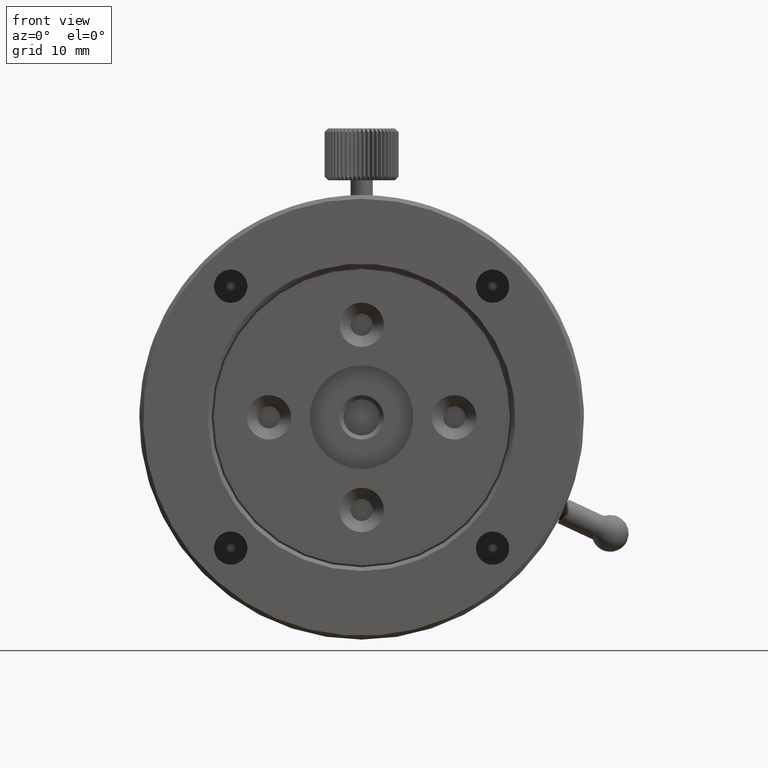
[diagram: clean part render]
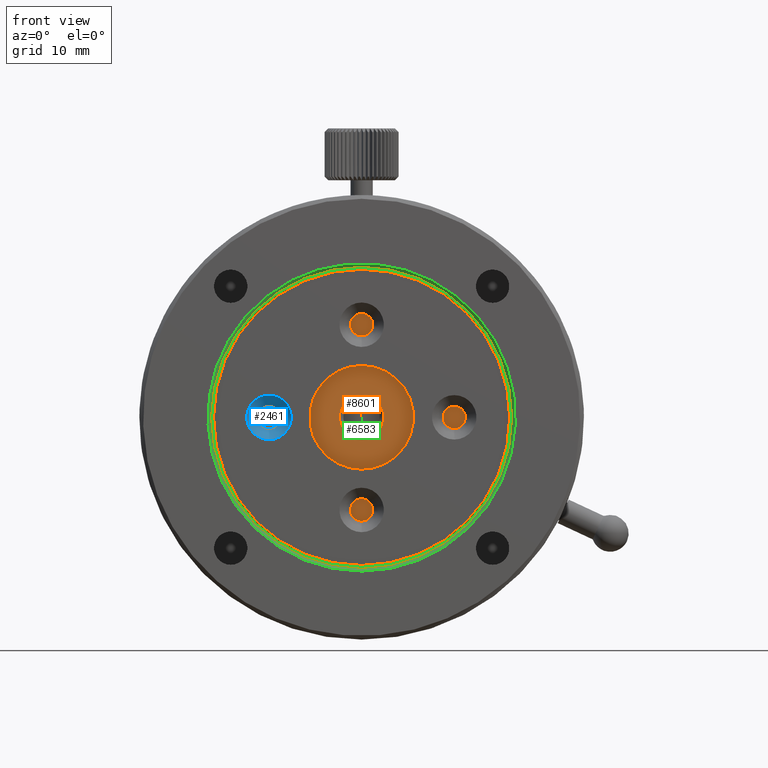
[diagram: same view with three faces highlighted in distinct colors, each labeled with its STEP entity id]
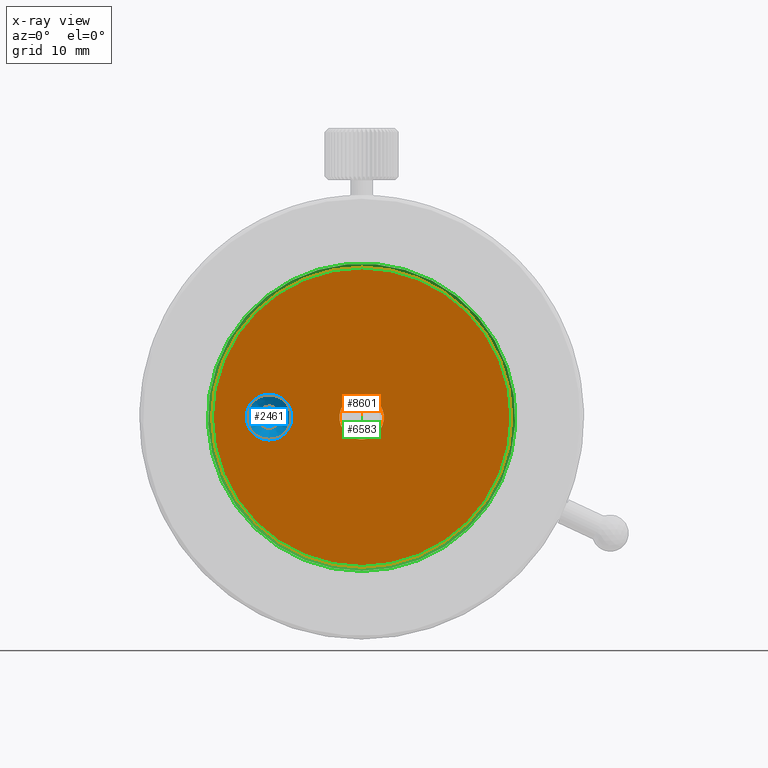
[diagram: x-ray of the same camera — body ghosted, the three highlighted faces saturated]
A machine part, front view with three faces highlighted in distinct colors.
The next image is the same camera in x-ray (body ghosted, the three faces saturated) — at least one of them is partly hidden behind the body in this view.
Their STEP definitions:

[orange] entity #8601 — the highlighted planar face has unit normal (0, -1, 0).
#301 = FACE_BOUND ( 'NONE', #1353, .T. ) ;
#866 = DIRECTION ( 'NONE',  ( 0.000000000000000000, -1.000000000000000000, 0.000000000000000000 ) ) ;
#1353 = EDGE_LOOP ( 'NONE', ( #4893 ) ) ;
#1518 = EDGE_CURVE ( 'NONE', #3046, #3046, #4305, .T. ) ;
#1639 = DIRECTION ( 'NONE',  ( 0.000000000000000000, 0.000000000000000000, -1.000000000000000000 ) ) ;
#1784 = CARTESIAN_POINT ( 'NONE',  ( 2.121320343559641053, 3.000000000000000000, -2.121320343559644162 ) ) ;
#2465 = AXIS2_PLACEMENT_3D ( 'NONE', #4532, #3905, #1639 ) ;
#2533 = EDGE_LOOP ( 'NONE', ( #9040 ) ) ;
#3046 = VERTEX_POINT ( 'NONE', #3816 ) ;
#3149 = EDGE_CURVE ( 'NONE', #3330, #3330, #8169, .T. ) ;
#3330 = VERTEX_POINT ( 'NONE', #9198 ) ;
#3790 = DIRECTION ( 'NONE',  ( 0.000000000000000000, 0.000000000000000000, -1.000000000000000000 ) ) ;
#3816 = CARTESIAN_POINT ( 'NONE',  ( 0.000000000000000000, 2.999999999929059413, -3.000000000000008438 ) ) ;
#3905 = DIRECTION ( 'NONE',  ( -0.000000000000000000, 1.000000000000000000, -0.000000000000000000 ) ) ;
#4002 = DIRECTION ( 'NONE',  ( 0.000000000000000000, 0.000000000000000000, -1.000000000000000000 ) ) ;
#4305 = CIRCLE ( 'NONE', #2465, 3.000000000000008438 ) ;
#4368 = AXIS2_PLACEMENT_3D ( 'NONE', #1784, #6170, #4002 ) ;
#4532 = CARTESIAN_POINT ( 'NONE',  ( 0.000000000000000000, 2.999999999929059413, 0.000000000000000000 ) ) ;
#4724 = PLANE ( 'NONE',  #4368 ) ;
#4893 = ORIENTED_EDGE ( 'NONE', *, *, #1518, .T. ) ;
#6033 = AXIS2_PLACEMENT_3D ( 'NONE', #7451, #866, #3790 ) ;
#6170 = DIRECTION ( 'NONE',  ( 0.000000000000000000, -1.000000000000000000, 0.000000000000000000 ) ) ;
#7072 = FACE_OUTER_BOUND ( 'NONE', #2533, .T. ) ;
#7451 = CARTESIAN_POINT ( 'NONE',  ( 0.000000000000000000, 3.000000000000000000, 0.000000000000000000 ) ) ;
#8169 = CIRCLE ( 'NONE', #6033, 20.25000000000000000 ) ;
#8601 = ADVANCED_FACE ( 'NONE', ( #7072, #301 ), #4724, .T. ) ;
#9040 = ORIENTED_EDGE ( 'NONE', *, *, #3149, .T. ) ;
#9198 = CARTESIAN_POINT ( 'NONE',  ( 0.000000000000000000, 3.000000000000000000, -20.25000000000000000 ) ) ;

[blue] entity #2461 — the highlighted conical surface has half-angle 45 deg.
#225 = DIRECTION ( 'NONE',  ( 0.000000000000000000, 0.000000000000000000, -1.000000000000000000 ) ) ;
#1036 = CARTESIAN_POINT ( 'NONE',  ( -12.50000000000000000, 0.7000000001085027179, -1.517883041479706208E-15 ) ) ;
#1078 = FACE_BOUND ( 'NONE', #3530, .T. ) ;
#2045 = EDGE_CURVE ( 'NONE', #2656, #2656, #9073, .T. ) ;
#2159 = ORIENTED_EDGE ( 'NONE', *, *, #2045, .F. ) ;
#2461 = ADVANCED_FACE ( 'NONE', ( #1078, #2472 ), #9400, .F. ) ;
#2472 = FACE_OUTER_BOUND ( 'NONE', #5289, .T. ) ;
#2564 = DIRECTION ( 'NONE',  ( 0.000000000000000000, -1.000000000000000000, 0.000000000000000000 ) ) ;
#2656 = VERTEX_POINT ( 'NONE', #6270 ) ;
#3301 = DIRECTION ( 'NONE',  ( 0.000000000000000000, -1.000000000000000000, 0.000000000000000000 ) ) ;
#3530 = EDGE_LOOP ( 'NONE', ( #2159 ) ) ;
#4399 = DIRECTION ( 'NONE',  ( 0.000000000000000000, -1.000000000000000000, 0.000000000000000000 ) ) ;
#4541 = CIRCLE ( 'NONE', #4842, 2.999999999985902832 ) ;
#4629 = CARTESIAN_POINT ( 'NONE',  ( -12.50000000000000000, 0.6999999999948141038, -2.999999999985904608 ) ) ;
#4842 = AXIS2_PLACEMENT_3D ( 'NONE', #5799, #4399, #8772 ) ;
#5289 = EDGE_LOOP ( 'NONE', ( #9483 ) ) ;
#5799 = CARTESIAN_POINT ( 'NONE',  ( -12.50000000000000000, 0.6999999999948141038, -1.517883041479706208E-15 ) ) ;
#6166 = AXIS2_PLACEMENT_3D ( 'NONE', #6195, #3301, #8497 ) ;
#6195 = CARTESIAN_POINT ( 'NONE',  ( -12.50000000000000000, 2.200000000016189006, -1.517883041479706208E-15 ) ) ;
#6270 = CARTESIAN_POINT ( 'NONE',  ( -12.50000000000000000, 2.200000000016189006, -1.499999999964529707 ) ) ;
#8497 = DIRECTION ( 'NONE',  ( 0.000000000000000000, 0.000000000000000000, -1.000000000000000000 ) ) ;
#8772 = DIRECTION ( 'NONE',  ( 0.000000000000000000, 0.000000000000000000, -1.000000000000000000 ) ) ;
#8931 = AXIS2_PLACEMENT_3D ( 'NONE', #1036, #2564, #225 ) ;
#9073 = CIRCLE ( 'NONE', #6166, 1.499999999964528152 ) ;
#9188 = VERTEX_POINT ( 'NONE', #4629 ) ;
#9397 = EDGE_CURVE ( 'NONE', #9188, #9188, #4541, .T. ) ;
#9400 = CONICAL_SURFACE ( 'NONE', #8931, 2.999999999872214218, 0.7853981633974482790 ) ;
#9483 = ORIENTED_EDGE ( 'NONE', *, *, #9397, .T. ) ;

[green] entity #6583 — the highlighted conical surface has half-angle 45 deg.
#90 = DIRECTION ( 'NONE',  ( -0.7071067811865480168, -2.677042401198776251E-17, -0.7071067811865471286 ) ) ;
#693 = CARTESIAN_POINT ( 'NONE',  ( 0.000000000000000000, 0.000000000000000000, 0.000000000000000000 ) ) ;
#1252 = CIRCLE ( 'NONE', #5245, 20.25000000000000000 ) ;
#1581 = CARTESIAN_POINT ( 'NONE',  ( 0.000000000000000000, 0.5000000000000004441, 0.000000000000000000 ) ) ;
#1917 = EDGE_CURVE ( 'NONE', #3144, #3144, #1252, .T. ) ;
#1970 = AXIS2_PLACEMENT_3D ( 'NONE', #693, #2260, #3617 ) ;
#2260 = DIRECTION ( 'NONE',  ( -0.000000000000000000, 1.000000000000000000, -0.000000000000000000 ) ) ;
#2712 = CARTESIAN_POINT ( 'NONE',  ( 0.000000000000000000, -1.809393401057657155E-15, 0.000000000000000000 ) ) ;
#2762 = CIRCLE ( 'NONE', #1970, 20.74999999999999645 ) ;
#3144 = VERTEX_POINT ( 'NONE', #9013 ) ;
#3239 = AXIS2_PLACEMENT_3D ( 'NONE', #2712, #8586, #5706 ) ;
#3516 = CARTESIAN_POINT ( 'NONE',  ( 0.000000000000000000, 0.000000000000000000, -20.74999999999999645 ) ) ;
#3617 = DIRECTION ( 'NONE',  ( 0.000000000000000000, 0.000000000000000000, -1.000000000000000000 ) ) ;
#3624 = VERTEX_POINT ( 'NONE', #3516 ) ;
#4936 = CONICAL_SURFACE ( 'NONE', #3239, 20.75000000000000000, 0.7853981633974473908 ) ;
#5245 = AXIS2_PLACEMENT_3D ( 'NONE', #1581, #8249, #90 ) ;
#5539 = ORIENTED_EDGE ( 'NONE', *, *, #5806, .F. ) ;
#5706 = DIRECTION ( 'NONE',  ( 0.000000000000000000, 0.000000000000000000, -1.000000000000000000 ) ) ;
#5806 = EDGE_CURVE ( 'NONE', #3624, #3624, #2762, .T. ) ;
#6478 = FACE_BOUND ( 'NONE', #7577, .T. ) ;
#6583 = ADVANCED_FACE ( 'NONE', ( #6478, #9318 ), #4936, .F. ) ;
#7163 = EDGE_LOOP ( 'NONE', ( #5539 ) ) ;
#7577 = EDGE_LOOP ( 'NONE', ( #8415 ) ) ;
#8249 = DIRECTION ( 'NONE',  ( 0.000000000000000000, -1.000000000000000000, 0.000000000000000000 ) ) ;
#8415 = ORIENTED_EDGE ( 'NONE', *, *, #1917, .F. ) ;
#8586 = DIRECTION ( 'NONE',  ( 0.000000000000000000, -1.000000000000000000, 0.000000000000000000 ) ) ;
#9013 = CARTESIAN_POINT ( 'NONE',  ( -14.31891231902759820, 0.4999999999999998890, -14.31891231902757866 ) ) ;
#9318 = FACE_OUTER_BOUND ( 'NONE', #7163, .T. ) ;